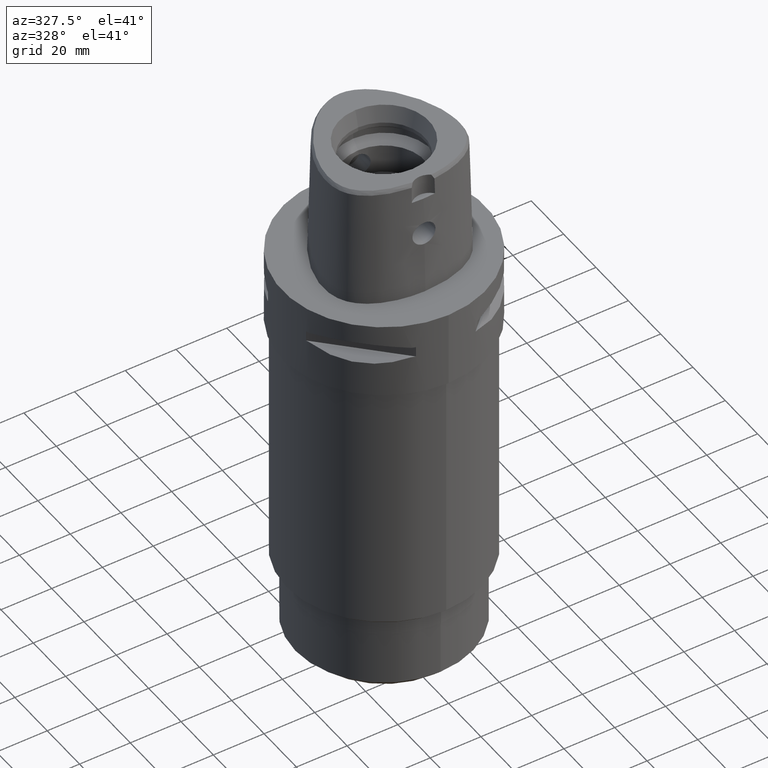
[diagram: clean part render]
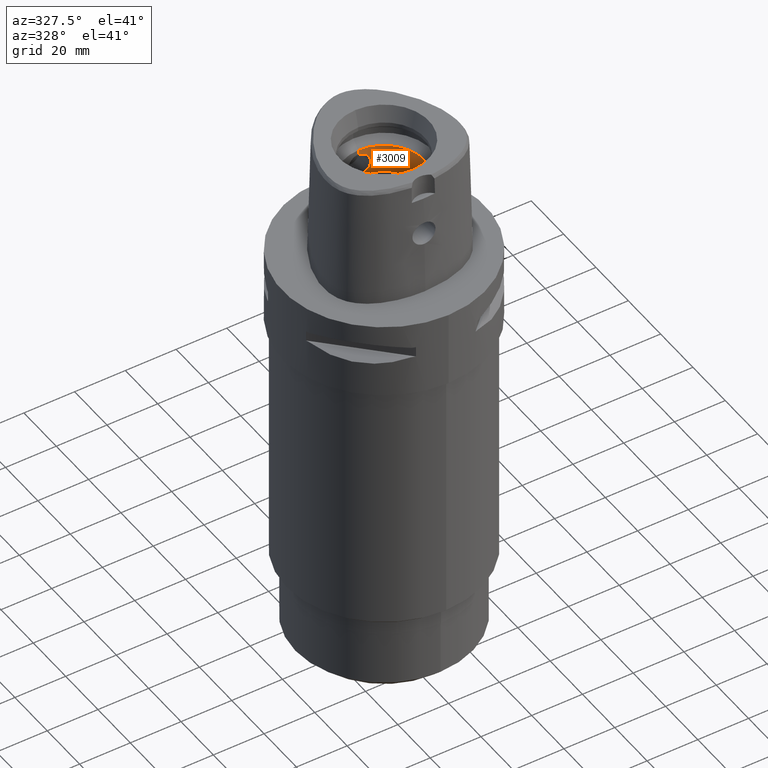
[diagram: same view with one face highlighted and labeled with its STEP entity id]
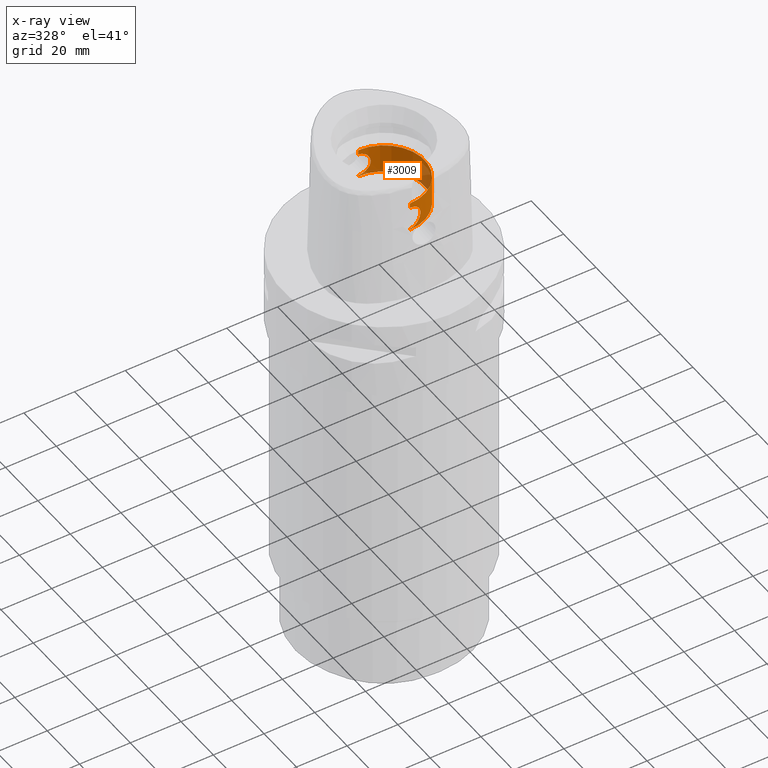
[diagram: x-ray of the same camera — body ghosted, the highlighted face saturated]
A machine part, auxiliary view. The second image highlights one B-rep face of the part: STEP entity #3009.
The next image is the same camera in x-ray: the body ghosted, the highlighted face saturated — about 18% of this face is hidden behind the body in this view.
In plain terms, the highlighted cylindrical surface (partial cylindrical patch) has radius 16 mm, axis along (0, 0, -1).
Its self-contained STEP definition (entity closure, byte-faithful):
#884=CARTESIAN_POINT('',(0.E0,0.E0,2.E1));
#885=DIRECTION('',(0.E0,0.E0,-1.E0));
#886=DIRECTION('',(0.E0,1.E0,0.E0));
#887=AXIS2_PLACEMENT_3D('',#884,#885,#886);
#916=CARTESIAN_POINT('',(0.E0,1.6E1,2.045E1));
#917=CARTESIAN_POINT('',(3.988870664283E-1,1.6E1,2.045E1));
#918=CARTESIAN_POINT('',(1.170967428680E0,1.597054005409E1,2.055220601059E1));
#919=CARTESIAN_POINT('',(2.269165045145E0,1.585004967254E1,2.099597418438E1));
#920=CARTESIAN_POINT('',(3.235840392460E0,1.567764940963E1,2.172606052796E1));
#921=CARTESIAN_POINT('',(3.979931154606E0,1.550129804816E1,2.268485409254E1));
#922=CARTESIAN_POINT('',(4.449771257924E0,1.536976770899E1,2.382038264550E1));
#923=CARTESIAN_POINT('',(4.600139872242E0,1.532423623196E1,2.500306615614E1));
#924=CARTESIAN_POINT('',(4.449671501328E0,1.536974686289E1,2.617034550552E1));
#925=CARTESIAN_POINT('',(3.998263926289E0,1.549625437505E1,2.727846324912E1));
#926=CARTESIAN_POINT('',(3.274706598276E0,1.566933645876E1,2.823515726993E1));
#927=CARTESIAN_POINT('',(2.304752484980E0,1.584537923445E1,2.898659566049E1));
#928=CARTESIAN_POINT('',(1.179336180185E0,1.597044752780E1,2.944759719027E1));
#929=CARTESIAN_POINT('',(4.011752150311E-1,1.6E1,2.955E1));
#930=CARTESIAN_POINT('',(0.E0,1.6E1,2.955E1));
#935=DIRECTION('',(0.E0,0.E0,1.E0));
#936=VECTOR('',#935,1.95E0);
#937=CARTESIAN_POINT('',(0.E0,1.6E1,2.955E1));
#938=LINE('',#937,#936);
#942=CARTESIAN_POINT('',(0.E0,-1.6E1,2.955E1));
#943=CARTESIAN_POINT('',(3.988949840461E-1,-1.6E1,2.955E1));
#944=CARTESIAN_POINT('',(1.170987392246E0,-1.597053904738E1,2.944779000851E1));
#945=CARTESIAN_POINT('',(2.269201620188E0,-1.585004458749E1,2.900400791297E1));
#946=CARTESIAN_POINT('',(3.235861839035E0,-1.567764412795E1,2.827390929896E1));
#947=CARTESIAN_POINT('',(3.979906728756E0,-1.550130427707E1,2.731518700362E1));
#948=CARTESIAN_POINT('',(4.449786355208E0,-1.536976358980E1,2.617958816771E1));
#949=CARTESIAN_POINT('',(4.600141260479E0,-1.532423580536E1,2.499687162329E1));
#950=CARTESIAN_POINT('',(4.449650824034E0,-1.536975269654E1,2.382959914842E1));
#951=CARTESIAN_POINT('',(3.998275641248E0,-1.549625137392E1,2.272155873649E1));
#952=CARTESIAN_POINT('',(3.274680675105E0,-1.566934256353E1,2.176480938883E1));
#953=CARTESIAN_POINT('',(2.304714680869E0,-1.584538459831E1,2.101338521127E1));
#954=CARTESIAN_POINT('',(1.179313211587E0,-1.597044876186E1,2.055239805286E1));
#955=CARTESIAN_POINT('',(4.011661463450E-1,-1.6E1,2.045E1));
#956=CARTESIAN_POINT('',(0.E0,-1.6E1,2.045E1));
#961=DIRECTION('',(0.E0,0.E0,1.E0));
#962=VECTOR('',#961,4.5E-1);
#963=CARTESIAN_POINT('',(0.E0,1.6E1,2.E1));
#964=LINE('',#963,#962);
#1001=DIRECTION('',(0.E0,0.E0,1.E0));
#1002=VECTOR('',#1001,1.95E0);
#1003=CARTESIAN_POINT('',(0.E0,-1.6E1,2.955E1));
#1004=LINE('',#1003,#1002);
#1027=DIRECTION('',(0.E0,0.E0,1.E0));
#1028=VECTOR('',#1027,4.5E-1);
#1029=CARTESIAN_POINT('',(0.E0,-1.6E1,2.E1));
#1030=LINE('',#1029,#1028);
#1134=CARTESIAN_POINT('',(0.E0,0.E0,3.15E1));
#1135=DIRECTION('',(0.E0,0.E0,1.E0));
#1136=DIRECTION('',(0.E0,-1.E0,0.E0));
#1137=AXIS2_PLACEMENT_3D('',#1134,#1135,#1136);
#1709=CARTESIAN_POINT('',(0.E0,1.6E1,2.E1));
#1710=CARTESIAN_POINT('',(0.E0,-1.6E1,2.E1));
#1711=VERTEX_POINT('',#1709);
#1712=VERTEX_POINT('',#1710);
#1713=VERTEX_POINT('',#916);
#1714=VERTEX_POINT('',#930);
#1715=CARTESIAN_POINT('',(0.E0,1.6E1,3.15E1));
#1716=VERTEX_POINT('',#1715);
#1717=CARTESIAN_POINT('',(0.E0,-1.6E1,3.15E1));
#1718=VERTEX_POINT('',#1717);
#1719=CARTESIAN_POINT('',(0.E0,-1.6E1,2.955E1));
#1720=VERTEX_POINT('',#1719);
#1721=VERTEX_POINT('',#956);
#2987=CARTESIAN_POINT('',(0.E0,0.E0,5.04E1));
#2988=DIRECTION('',(0.E0,0.E0,-1.E0));
#2989=DIRECTION('',(0.E0,-1.E0,0.E0));
#2990=AXIS2_PLACEMENT_3D('',#2987,#2988,#2989);
#2991=CYLINDRICAL_SURFACE('',#2990,1.6E1);
#2993=ORIENTED_EDGE('',*,*,#2992,.T.);
#2995=ORIENTED_EDGE('',*,*,#2994,.T.);
#2997=ORIENTED_EDGE('',*,*,#2996,.F.);
#2999=ORIENTED_EDGE('',*,*,#2998,.F.);
#3001=ORIENTED_EDGE('',*,*,#3000,.T.);
#3003=ORIENTED_EDGE('',*,*,#3002,.F.);
#3004=ORIENTED_EDGE('',*,*,#2976,.F.);
#3006=ORIENTED_EDGE('',*,*,#3005,.T.);
#3007=EDGE_LOOP('',(#2993,#2995,#2997,#2999,#3001,#3003,#3004,#3006));
#3008=FACE_OUTER_BOUND('',#3007,.F.);
#888=CIRCLE('',#887,1.6E1);
#931=B_SPLINE_CURVE_WITH_KNOTS('',3,(#916,#917,#918,#919,#920,#921,#922,#923,
#924,#925,#926,#927,#928,#929,#930),.UNSPECIFIED.,.F.,.F.,(4,1,1,1,1,1,1,1,1,1,
1,1,4),(0.E0,8.333333333333E-2,1.666666666667E-1,2.5E-1,3.333333333333E-1,
4.166666666667E-1,5.E-1,5.833333333333E-1,6.666666666667E-1,7.5E-1,
8.333333333333E-1,9.166666666667E-1,1.E0),.UNSPECIFIED.);
#957=B_SPLINE_CURVE_WITH_KNOTS('',3,(#942,#943,#944,#945,#946,#947,#948,#949,
#950,#951,#952,#953,#954,#955,#956),.UNSPECIFIED.,.F.,.F.,(4,1,1,1,1,1,1,1,1,1,
1,1,4),(0.E0,8.333333333333E-2,1.666666666667E-1,2.5E-1,3.333333333333E-1,
4.166666666667E-1,5.E-1,5.833333333333E-1,6.666666666667E-1,7.5E-1,
8.333333333333E-1,9.166666666667E-1,1.E0),.UNSPECIFIED.);
#1138=CIRCLE('',#1137,1.6E1);
#2976=EDGE_CURVE('',#1711,#1712,#888,.T.);
#2992=EDGE_CURVE('',#1713,#1714,#931,.T.);
#2994=EDGE_CURVE('',#1714,#1716,#938,.T.);
#2996=EDGE_CURVE('',#1718,#1716,#1138,.T.);
#2998=EDGE_CURVE('',#1720,#1718,#1004,.T.);
#3000=EDGE_CURVE('',#1720,#1721,#957,.T.);
#3002=EDGE_CURVE('',#1712,#1721,#1030,.T.);
#3005=EDGE_CURVE('',#1711,#1713,#964,.T.);
#3009=ADVANCED_FACE('',(#3008),#2991,.F.);